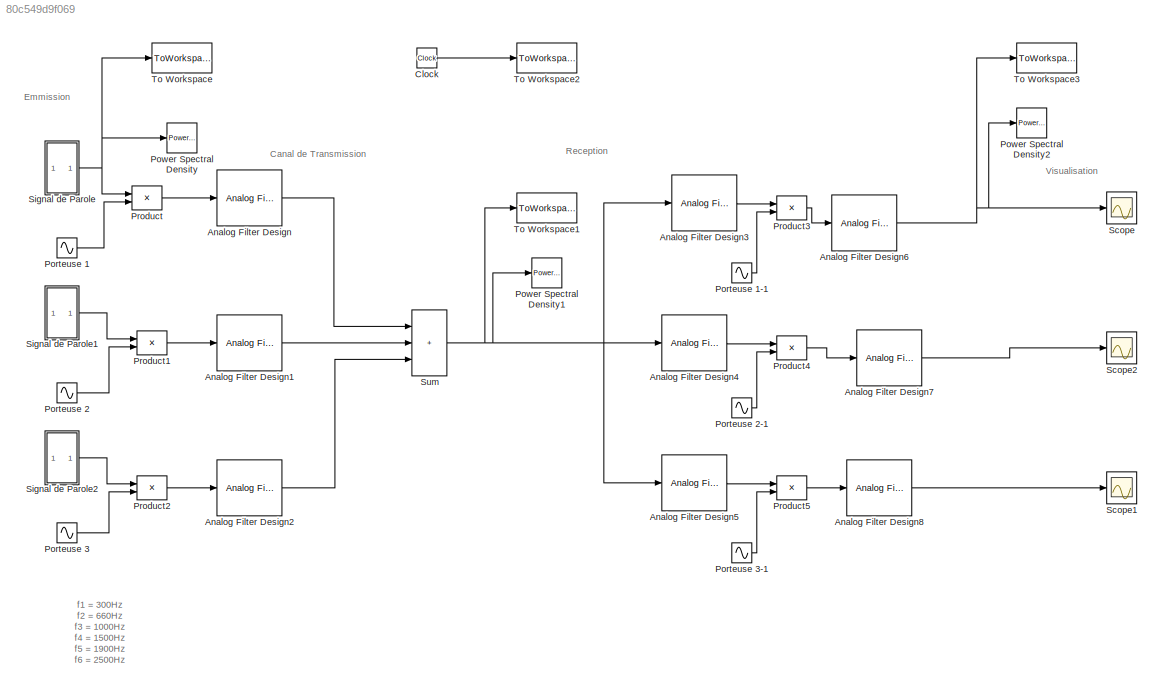
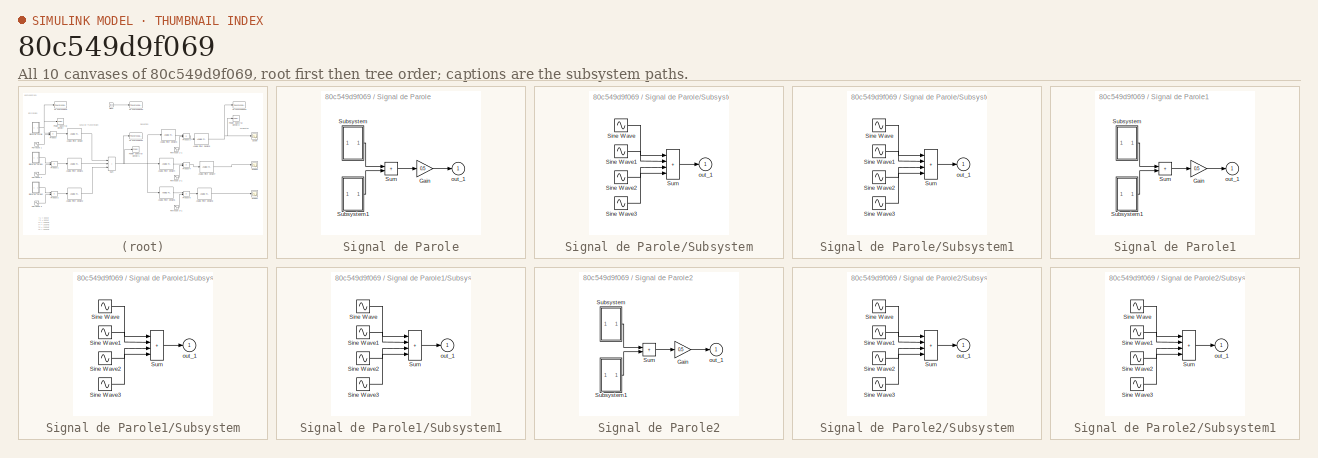
[diagram: thumbnail index - all 10 canvases of the model, root first then tree order]
MODEL slx_80c549d9f069
KIND model
CONFIG AbsTol = auto
CONFIG EnableMultiTasking = off
CONFIG FixedStep = auto
CONFIG MaxStep = 1e-5
CONFIG MinStep = auto
CONFIG RelTol = 1e-3
CONFIG SampleTimeConstraint = Unconstrained
CONFIG SolverName = ode45
CONFIG StartTime = 0.0
CONFIG StopTime = 10
BLOCK [Reference] Analog Filter Design  REF=dspfdesign/Analog
Filter Design
  SourceBlock = dspfdesign/Analog\nFilter Design
  SourceType = Analog Filter Design
BLOCK [Reference] Analog Filter Design1  REF=dspfdesign/Analog
Filter Design
  SourceBlock = dspfdesign/Analog\nFilter Design
  SourceType = Analog Filter Design
BLOCK [Reference] Analog Filter Design2  REF=dspfdesign/Analog
Filter Design
  SourceBlock = dspfdesign/Analog\nFilter Design
  SourceType = Analog Filter Design
BLOCK [Reference] Analog Filter Design3  REF=dspfdesign/Analog
Filter Design
  SourceBlock = dspfdesign/Analog\nFilter Design
  SourceType = Analog Filter Design
BLOCK [Reference] Analog Filter Design4  REF=dspfdesign/Analog
Filter Design
  SourceBlock = dspfdesign/Analog\nFilter Design
  SourceType = Analog Filter Design
BLOCK [Reference] Analog Filter Design5  REF=dspfdesign/Analog
Filter Design
  SourceBlock = dspfdesign/Analog\nFilter Design
  SourceType = Analog Filter Design
BLOCK [Reference] Analog Filter Design6  REF=dspfdesign/Analog
Filter Design
  SourceBlock = dspfdesign/Analog\nFilter Design
  SourceType = Analog Filter Design
BLOCK [Reference] Analog Filter Design7  REF=dspfdesign/Analog
Filter Design
  SourceBlock = dspfdesign/Analog\nFilter Design
  SourceType = Analog Filter Design
BLOCK [Reference] Analog Filter Design8  REF=dspfdesign/Analog
Filter Design
  SourceBlock = dspfdesign/Analog\nFilter Design
  SourceType = Analog Filter Design
BLOCK [Clock] Clock
BLOCK [Sin] Porteuse 1
  Frequency = 2*pi*XXXX
BLOCK [Sin] Porteuse 1-1
  Frequency = 2*pi*XXXX
BLOCK [Sin] Porteuse 2 
  Frequency = 2*pi*XXXX
BLOCK [Sin] Porteuse 2-1
  Frequency = 2*pi*XXXX
BLOCK [Sin] Porteuse 3
  Frequency = 2*pi*XXXX
BLOCK [Sin] Porteuse 3-1
  Frequency = 2*pi*XXXXX
BLOCK [Reference] Power Spectral Density  REF=simulink_extras/Additional
Sinks/Power Spectral
Density
  SourceBlock = simulink_extras/Additional\nSinks/Power Spectral\nDensity
  SourceType = Power Spectral Density
BLOCK [Reference] Power Spectral Density1  REF=simulink_extras/Additional
Sinks/Power Spectral
Density
  SourceBlock = simulink_extras/Additional\nSinks/Power Spectral\nDensity
  SourceType = Power Spectral Density
BLOCK [Reference] Power Spectral Density2  REF=simulink_extras/Additional
Sinks/Power Spectral
Density
  SourceBlock = simulink_extras/Additional\nSinks/Power Spectral\nDensity
  SourceType = Power Spectral Density
BLOCK [Product] Product
  InputSameDT = on
  OutDataTypeStr = Inherit: Same as first input
  RndMeth = Zero
  SampleTime = 1e-6
  SaturateOnIntegerOverflow = on
BLOCK [Product] Product1
  InputSameDT = on
  OutDataTypeStr = Inherit: Same as first input
  RndMeth = Zero
  SaturateOnIntegerOverflow = on
BLOCK [Product] Product2
  InputSameDT = on
  OutDataTypeStr = Inherit: Same as first input
  RndMeth = Zero
  SaturateOnIntegerOverflow = on
BLOCK [Product] Product3
  InputSameDT = on
  OutDataTypeStr = Inherit: Same as first input
  RndMeth = Zero
  SampleTime = 1e-6
  SaturateOnIntegerOverflow = on
BLOCK [Product] Product4
  InputSameDT = on
  OutDataTypeStr = Inherit: Same as first input
  RndMeth = Zero
  SaturateOnIntegerOverflow = on
BLOCK [Product] Product5
  InputSameDT = on
  OutDataTypeStr = Inherit: Same as first input
  RndMeth = Zero
  SaturateOnIntegerOverflow = on
BLOCK [Scope] Scope
  Floating = off
  NumInputPorts = 1
  ScopeSpecificationString = C++SS(StrPVP('Location','[188, 365, 1260, 812]'),StrPVP('Open','off'),MxPVP('AxesTitles',54,'struct(''axes1'',''%<SignalLabel>'')'),MxPVP('ScopeGraphics',57,'struct(''FigureColor'',''[0.5 0.5 0.5]'',''AxesColor'',''[0 0 0]'',''AxesTickColor'',''[1 1 1]'',''LineColors'',''[1 1 0;1 0 1;0 1 1;1 0 0;0 1 0;0 0 1]'',''LineStyles'',''-|-|-|-|-|-'',''LineWidths'',''[0.5 0.5 0.5 0.5 0.5 0.5]'',''MarkerStyl...<+193ch>
BLOCK [Scope] Scope1
  Floating = off
  NumInputPorts = 1
  ScopeSpecificationString = C++SS(StrPVP('Location','[188, 365, 512, 604]'),StrPVP('Open','off'),MxPVP('AxesTitles',54,'struct(''axes1'',''%<SignalLabel>'')'),StrPVP('ShowLegends','off'),StrPVP('LimitDataPoints','on'),StrPVP('DataFormat','Array'),StrPVP('Decimation','1'),StrPVP('BlockParamSampleInput','off'))
BLOCK [Scope] Scope2
  Floating = off
  NumInputPorts = 1
  ScopeSpecificationString = C++SS(StrPVP('Location','[188, 365, 512, 604]'),StrPVP('Open','off'),MxPVP('AxesTitles',54,'struct(''axes1'',''%<SignalLabel>'')'),StrPVP('ShowLegends','off'),StrPVP('LimitDataPoints','on'),StrPVP('DataFormat','Array'),StrPVP('Decimation','1'),StrPVP('BlockParamSampleInput','off'))
BLOCK [SubSystem] Signal de Parole
  ShowPortLabels = none
BLOCK [Gain] Signal de Parole/Gain
  Gain = 0.5
  OutDataTypeStr = Inherit: Same as input
  ParamDataTypeStr = Inherit: Same as input
  SaturateOnIntegerOverflow = on
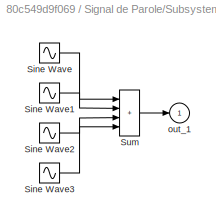
BLOCK [SubSystem] Signal de Parole/Subsystem
  ShowPortLabels = none
BLOCK [Sin] Signal de Parole/Subsystem/Sine Wave
  Amplitude = 0.3
  Frequency = 2*pi*300
BLOCK [Sin] Signal de Parole/Subsystem/Sine Wave1
  Amplitude = 0.5
  Frequency = 2*pi*660
BLOCK [Sin] Signal de Parole/Subsystem/Sine Wave2
  Amplitude = 0.8
  Frequency = 2*pi*1000
BLOCK [Sin] Signal de Parole/Subsystem/Sine Wave3
  Amplitude = 0.7
  Frequency = 2*pi*1500
BLOCK [Sum] Signal de Parole/Subsystem/Sum
  IconShape = rectangular
  InputSameDT = on
  Inputs = ++++
  OutDataTypeStr = Inherit: Same as first input
  SaturateOnIntegerOverflow = on
BLOCK [Outport] Signal de Parole/Subsystem/out_1
  VectorParamsAs1DForOutWhenUnconnected = off
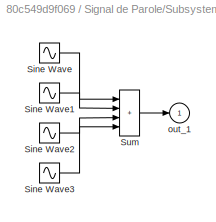
BLOCK [SubSystem] Signal de Parole/Subsystem1
  ShowPortLabels = none
BLOCK [Sin] Signal de Parole/Subsystem1/Sine Wave
  Amplitude = 0.3
  Frequency = 2*pi*1900
BLOCK [Sin] Signal de Parole/Subsystem1/Sine Wave1
  Amplitude = 0.6
  Frequency = 2*pi*2500
BLOCK [Sin] Signal de Parole/Subsystem1/Sine Wave2
  Amplitude = 0.4
  Frequency = 2*pi*3000
BLOCK [Sin] Signal de Parole/Subsystem1/Sine Wave3
  Frequency = 2*pi*3400
BLOCK [Sum] Signal de Parole/Subsystem1/Sum
  IconShape = rectangular
  InputSameDT = on
  Inputs = ++++
  OutDataTypeStr = Inherit: Same as first input
  SaturateOnIntegerOverflow = on
BLOCK [Outport] Signal de Parole/Subsystem1/out_1
  VectorParamsAs1DForOutWhenUnconnected = off
BLOCK [Sum] Signal de Parole/Sum
  IconShape = rectangular
  InputSameDT = on
  OutDataTypeStr = Inherit: Same as first input
  SaturateOnIntegerOverflow = on
BLOCK [Outport] Signal de Parole/out_1
  VectorParamsAs1DForOutWhenUnconnected = off
BLOCK [SubSystem] Signal de Parole1
  ShowPortLabels = none
BLOCK [Gain] Signal de Parole1/Gain
  Gain = 0.5
  OutDataTypeStr = Inherit: Same as input
  ParamDataTypeStr = Inherit: Same as input
  SaturateOnIntegerOverflow = on
BLOCK [SubSystem] Signal de Parole1/Subsystem
  ShowPortLabels = none
BLOCK [Sin] Signal de Parole1/Subsystem/Sine Wave
  Amplitude = 0.3
  Frequency = 2*pi*300
BLOCK [Sin] Signal de Parole1/Subsystem/Sine Wave1
  Amplitude = 0.5
  Frequency = 2*pi*660
BLOCK [Sin] Signal de Parole1/Subsystem/Sine Wave2
  Amplitude = 0.8
  Frequency = 2*pi*1000
BLOCK [Sin] Signal de Parole1/Subsystem/Sine Wave3
  Amplitude = 0.7
  Frequency = 2*pi*1500
BLOCK [Sum] Signal de Parole1/Subsystem/Sum
  IconShape = rectangular
  InputSameDT = on
  Inputs = ++++
  OutDataTypeStr = Inherit: Same as first input
  SaturateOnIntegerOverflow = on
BLOCK [Outport] Signal de Parole1/Subsystem/out_1
  VectorParamsAs1DForOutWhenUnconnected = off
BLOCK [SubSystem] Signal de Parole1/Subsystem1
  ShowPortLabels = none
BLOCK [Sin] Signal de Parole1/Subsystem1/Sine Wave
  Amplitude = 0.3
  Frequency = 2*pi*1900
BLOCK [Sin] Signal de Parole1/Subsystem1/Sine Wave1
  Amplitude = 0.6
  Frequency = 2*pi*2500
BLOCK [Sin] Signal de Parole1/Subsystem1/Sine Wave2
  Amplitude = 0.4
  Frequency = 2*pi*3000
BLOCK [Sin] Signal de Parole1/Subsystem1/Sine Wave3
  Frequency = 2*pi*3400
BLOCK [Sum] Signal de Parole1/Subsystem1/Sum
  IconShape = rectangular
  InputSameDT = on
  Inputs = ++++
  OutDataTypeStr = Inherit: Same as first input
  SaturateOnIntegerOverflow = on
BLOCK [Outport] Signal de Parole1/Subsystem1/out_1
  VectorParamsAs1DForOutWhenUnconnected = off
BLOCK [Sum] Signal de Parole1/Sum
  IconShape = rectangular
  InputSameDT = on
  OutDataTypeStr = Inherit: Same as first input
  SaturateOnIntegerOverflow = on
BLOCK [Outport] Signal de Parole1/out_1
  VectorParamsAs1DForOutWhenUnconnected = off
BLOCK [SubSystem] Signal de Parole2
  ShowPortLabels = none
BLOCK [Gain] Signal de Parole2/Gain
  Gain = 0.5
  OutDataTypeStr = Inherit: Same as input
  ParamDataTypeStr = Inherit: Same as input
  SaturateOnIntegerOverflow = on
BLOCK [SubSystem] Signal de Parole2/Subsystem
  ShowPortLabels = none
BLOCK [Sin] Signal de Parole2/Subsystem/Sine Wave
  Amplitude = 0.3
  Frequency = 2*pi*300
BLOCK [Sin] Signal de Parole2/Subsystem/Sine Wave1
  Amplitude = 0.5
  Frequency = 2*pi*660
BLOCK [Sin] Signal de Parole2/Subsystem/Sine Wave2
  Amplitude = 0.8
  Frequency = 2*pi*1000
BLOCK [Sin] Signal de Parole2/Subsystem/Sine Wave3
  Amplitude = 0.7
  Frequency = 2*pi*1500
BLOCK [Sum] Signal de Parole2/Subsystem/Sum
  IconShape = rectangular
  InputSameDT = on
  Inputs = ++++
  OutDataTypeStr = Inherit: Same as first input
  SaturateOnIntegerOverflow = on
BLOCK [Outport] Signal de Parole2/Subsystem/out_1
  VectorParamsAs1DForOutWhenUnconnected = off
BLOCK [SubSystem] Signal de Parole2/Subsystem1
  ShowPortLabels = none
BLOCK [Sin] Signal de Parole2/Subsystem1/Sine Wave
  Amplitude = 0.3
  Frequency = 2*pi*1900
BLOCK [Sin] Signal de Parole2/Subsystem1/Sine Wave1
  Amplitude = 0.6
  Frequency = 2*pi*2500
BLOCK [Sin] Signal de Parole2/Subsystem1/Sine Wave2
  Amplitude = 0.4
  Frequency = 2*pi*3000
BLOCK [Sin] Signal de Parole2/Subsystem1/Sine Wave3
  Frequency = 2*pi*3400
BLOCK [Sum] Signal de Parole2/Subsystem1/Sum
  IconShape = rectangular
  InputSameDT = on
  Inputs = ++++
  OutDataTypeStr = Inherit: Same as first input
  SaturateOnIntegerOverflow = on
BLOCK [Outport] Signal de Parole2/Subsystem1/out_1
  VectorParamsAs1DForOutWhenUnconnected = off
BLOCK [Sum] Signal de Parole2/Sum
  IconShape = rectangular
  InputSameDT = on
  OutDataTypeStr = Inherit: Same as first input
  SaturateOnIntegerOverflow = on
BLOCK [Outport] Signal de Parole2/out_1
  VectorParamsAs1DForOutWhenUnconnected = off
BLOCK [Sum] Sum
  IconShape = rectangular
  InputSameDT = on
  Inputs = +++
  OutDataTypeStr = Inherit: Same as first input
  SaturateOnIntegerOverflow = on
BLOCK [ToWorkspace] To Workspace
  FixptAsFi = on
  MaxDataPoints = inf
  SampleTime = -1
  VariableName = Ini
BLOCK [ToWorkspace] To Workspace1
  FixptAsFi = on
  MaxDataPoints = inf
  SampleTime = -1
  VariableName = Trans
BLOCK [ToWorkspace] To Workspace2
  FixptAsFi = on
  MaxDataPoints = inf
  SampleTime = -1
  VariableName = t
BLOCK [ToWorkspace] To Workspace3
  FixptAsFi = on
  MaxDataPoints = inf
  SampleTime = -1
  VariableName = s
ANNOTATION (root): Emmission
ANNOTATION (root): Reception
ANNOTATION (root): Visualisation
ANNOTATION (root): Canal de Transmission
ANNOTATION (root): f1 = 300Hz f2 = 660Hz f3 = 1000Hz f4 = 1500Hz f5 = 1900Hz f6 = 2500Hz f7 = 3000Hz f8 = 3400Hz
LINE Analog Filter Design1:1 -> Sum:2
LINE Analog Filter Design2:1 -> Sum:3
LINE Analog Filter Design3:1 -> Product3:1
LINE Analog Filter Design4:1 -> Product4:1
LINE Analog Filter Design5:1 -> Product5:1
NET Analog Filter Design6:1 -> Power Spectral Density2:1, Scope:1, To Workspace3:1
LINE Analog Filter Design7:1 -> Scope2:1
LINE Analog Filter Design8:1 -> Scope1:1
LINE Analog Filter Design:1 -> Sum:1
LINE Clock:1 -> To Workspace2:1
LINE Porteuse 1-1:1 -> Product3:2
LINE Porteuse 1:1 -> Product:2
LINE Porteuse 2 :1 -> Product1:2
LINE Porteuse 2-1:1 -> Product4:2
LINE Porteuse 3-1:1 -> Product5:2
LINE Porteuse 3:1 -> Product2:2
LINE Product1:1 -> Analog Filter Design1:1
LINE Product2:1 -> Analog Filter Design2:1
LINE Product3:1 -> Analog Filter Design6:1
LINE Product4:1 -> Analog Filter Design7:1
LINE Product5:1 -> Analog Filter Design8:1
LINE Product:1 -> Analog Filter Design:1
LINE Signal de Parole/Gain:1 -> Signal de Parole/out_1:1
LINE Signal de Parole/Subsystem/Sine Wave1:1 -> Signal de Parole/Subsystem/Sum:2
LINE Signal de Parole/Subsystem/Sine Wave2:1 -> Signal de Parole/Subsystem/Sum:3
LINE Signal de Parole/Subsystem/Sine Wave3:1 -> Signal de Parole/Subsystem/Sum:4
LINE Signal de Parole/Subsystem/Sine Wave:1 -> Signal de Parole/Subsystem/Sum:1
LINE Signal de Parole/Subsystem/Sum:1 -> Signal de Parole/Subsystem/out_1:1
LINE Signal de Parole/Subsystem1/Sine Wave1:1 -> Signal de Parole/Subsystem1/Sum:2
LINE Signal de Parole/Subsystem1/Sine Wave2:1 -> Signal de Parole/Subsystem1/Sum:3
LINE Signal de Parole/Subsystem1/Sine Wave3:1 -> Signal de Parole/Subsystem1/Sum:4
LINE Signal de Parole/Subsystem1/Sine Wave:1 -> Signal de Parole/Subsystem1/Sum:1
LINE Signal de Parole/Subsystem1/Sum:1 -> Signal de Parole/Subsystem1/out_1:1
LINE Signal de Parole/Subsystem1:1 -> Signal de Parole/Sum:2
LINE Signal de Parole/Subsystem:1 -> Signal de Parole/Sum:1
LINE Signal de Parole/Sum:1 -> Signal de Parole/Gain:1
LINE Signal de Parole1/Gain:1 -> Signal de Parole1/out_1:1
LINE Signal de Parole1/Subsystem/Sine Wave1:1 -> Signal de Parole1/Subsystem/Sum:2
LINE Signal de Parole1/Subsystem/Sine Wave2:1 -> Signal de Parole1/Subsystem/Sum:3
LINE Signal de Parole1/Subsystem/Sine Wave3:1 -> Signal de Parole1/Subsystem/Sum:4
LINE Signal de Parole1/Subsystem/Sine Wave:1 -> Signal de Parole1/Subsystem/Sum:1
LINE Signal de Parole1/Subsystem/Sum:1 -> Signal de Parole1/Subsystem/out_1:1
LINE Signal de Parole1/Subsystem1/Sine Wave1:1 -> Signal de Parole1/Subsystem1/Sum:2
LINE Signal de Parole1/Subsystem1/Sine Wave2:1 -> Signal de Parole1/Subsystem1/Sum:3
LINE Signal de Parole1/Subsystem1/Sine Wave3:1 -> Signal de Parole1/Subsystem1/Sum:4
LINE Signal de Parole1/Subsystem1/Sine Wave:1 -> Signal de Parole1/Subsystem1/Sum:1
LINE Signal de Parole1/Subsystem1/Sum:1 -> Signal de Parole1/Subsystem1/out_1:1
LINE Signal de Parole1/Subsystem1:1 -> Signal de Parole1/Sum:2
LINE Signal de Parole1/Subsystem:1 -> Signal de Parole1/Sum:1
LINE Signal de Parole1/Sum:1 -> Signal de Parole1/Gain:1
LINE Signal de Parole1:1 -> Product1:1
LINE Signal de Parole2/Gain:1 -> Signal de Parole2/out_1:1
LINE Signal de Parole2/Subsystem/Sine Wave1:1 -> Signal de Parole2/Subsystem/Sum:2
LINE Signal de Parole2/Subsystem/Sine Wave2:1 -> Signal de Parole2/Subsystem/Sum:3
LINE Signal de Parole2/Subsystem/Sine Wave3:1 -> Signal de Parole2/Subsystem/Sum:4
LINE Signal de Parole2/Subsystem/Sine Wave:1 -> Signal de Parole2/Subsystem/Sum:1
LINE Signal de Parole2/Subsystem/Sum:1 -> Signal de Parole2/Subsystem/out_1:1
LINE Signal de Parole2/Subsystem1/Sine Wave1:1 -> Signal de Parole2/Subsystem1/Sum:2
LINE Signal de Parole2/Subsystem1/Sine Wave2:1 -> Signal de Parole2/Subsystem1/Sum:3
LINE Signal de Parole2/Subsystem1/Sine Wave3:1 -> Signal de Parole2/Subsystem1/Sum:4
LINE Signal de Parole2/Subsystem1/Sine Wave:1 -> Signal de Parole2/Subsystem1/Sum:1
LINE Signal de Parole2/Subsystem1/Sum:1 -> Signal de Parole2/Subsystem1/out_1:1
LINE Signal de Parole2/Subsystem1:1 -> Signal de Parole2/Sum:2
LINE Signal de Parole2/Subsystem:1 -> Signal de Parole2/Sum:1
LINE Signal de Parole2/Sum:1 -> Signal de Parole2/Gain:1
LINE Signal de Parole2:1 -> Product2:1
NET Signal de Parole:1 -> Power Spectral Density:1, Product:1, To Workspace:1
NET Sum:1 -> Analog Filter Design3:1, Analog Filter Design4:1, Analog Filter Design5:1, Power Spectral Density1:1, To Workspace1:1
note: NET lines group one-source signal fan-out (src -> all destinations, sorted); 1:1 wires keep LINE
